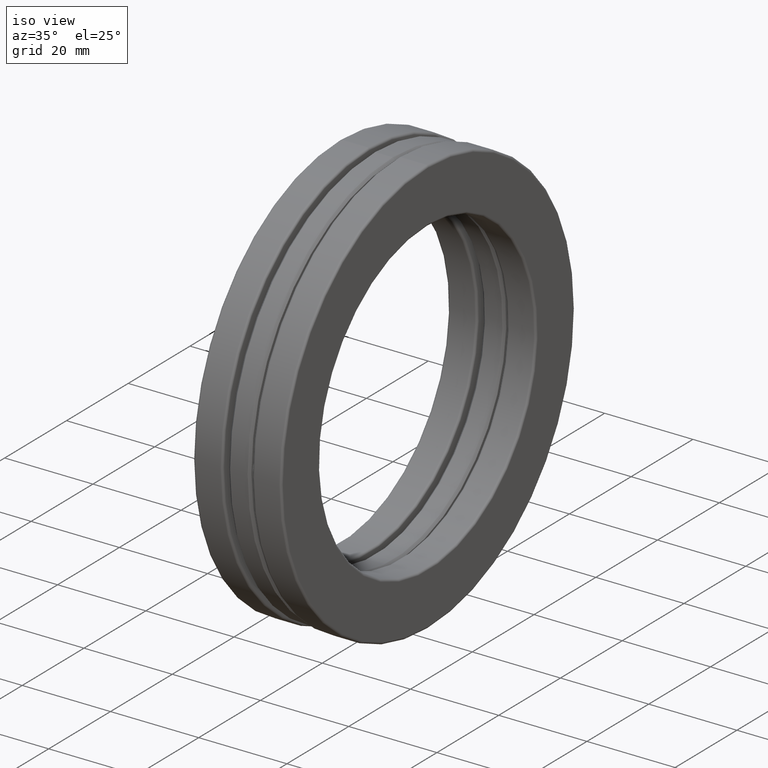
[diagram: clean part render]
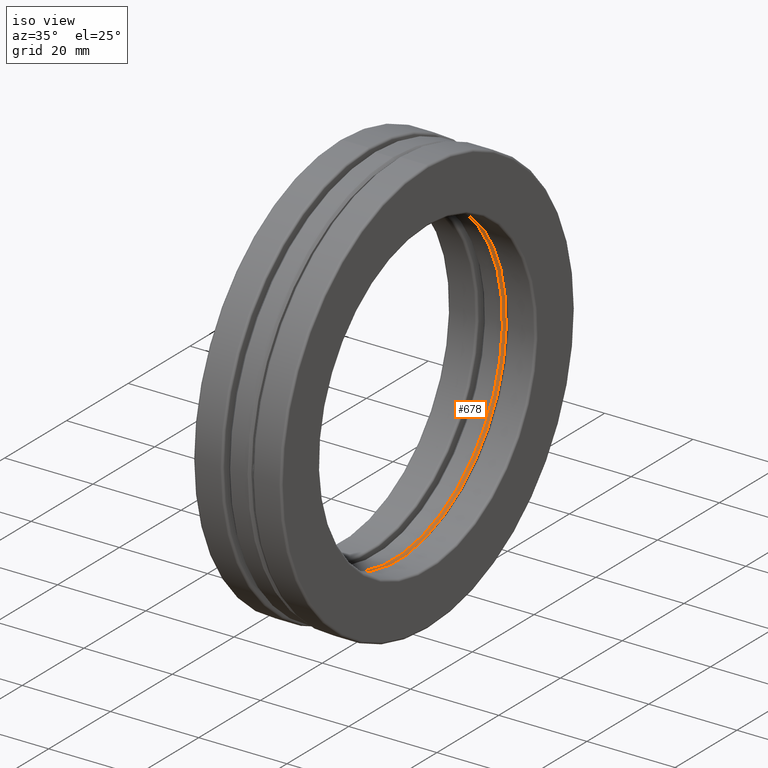
[diagram: same view with one face highlighted and labeled with its STEP entity id]
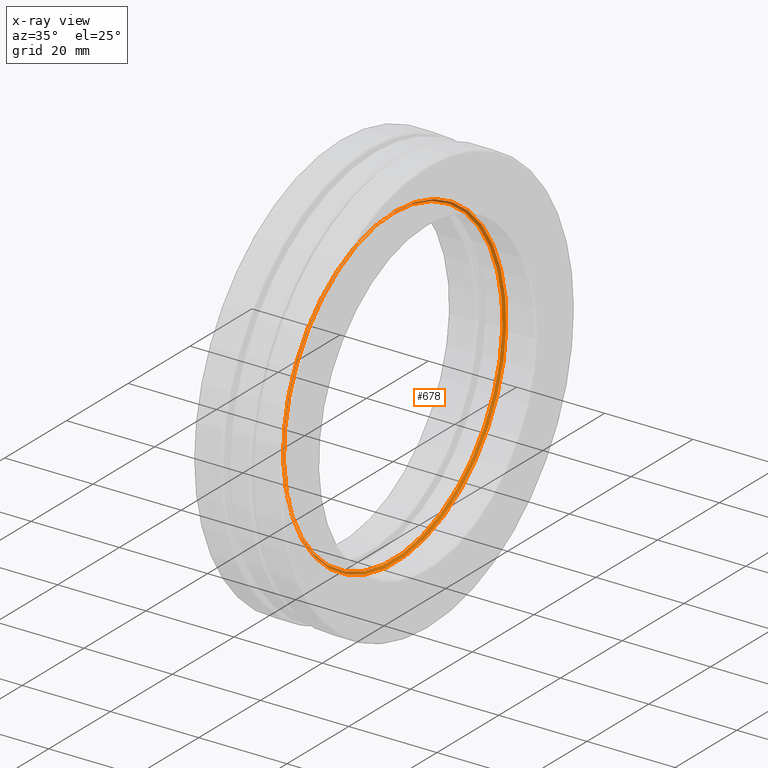
[diagram: x-ray of the same camera — body ghosted, the highlighted face saturated]
A machine part, iso view. The second image highlights one B-rep face of the part: STEP entity #678.
The next image is the same camera in x-ray: the body ghosted, the highlighted face saturated — about 10% of this face is hidden behind the body in this view.
In plain terms, the highlighted conical surface has half-angle 45 deg.
Its self-contained STEP definition (entity closure, byte-faithful):
#45 = FACE_OUTER_BOUND ( 'NONE', #708, .T. ) ;
#64 = FACE_BOUND ( 'NONE', #728, .T. ) ;
#83 = AXIS2_PLACEMENT_3D ( 'NONE', #782, #596, #480 ) ;
#123 = AXIS2_PLACEMENT_3D ( 'NONE', #677, #734, #565 ) ;
#149 = CONICAL_SURFACE ( 'NONE', #123, 1.417999999999999900, 0.7853981633974500600 ) ;
#179 = CIRCLE ( 'NONE', #83, 1.397999999999999900 ) ;
#290 = ORIENTED_EDGE ( 'NONE', *, *, #391, .T. ) ;
#391 = EDGE_CURVE ( 'NONE', #414, #414, #179, .T. ) ;
#393 = CARTESIAN_POINT ( 'NONE',  ( 0.07837500000000002800, 0.0000000000000000000, 1.397999999999999900 ) ) ;
#414 = VERTEX_POINT ( 'NONE', #393 ) ;
#463 = AXIS2_PLACEMENT_3D ( 'NONE', #741, #743, #807 ) ;
#480 = DIRECTION ( 'NONE',  ( 0.0000000000000000000, 0.0000000000000000000, 1.000000000000000000 ) ) ;
#499 = EDGE_CURVE ( 'NONE', #603, #603, #550, .T. ) ;
#550 = CIRCLE ( 'NONE', #463, 1.417999999999999900 ) ;
#565 = DIRECTION ( 'NONE',  ( 0.0000000000000000000, 0.0000000000000000000, -1.000000000000000000 ) ) ;
#595 = CARTESIAN_POINT ( 'NONE',  ( 0.09837500000000001800, 0.0000000000000000000, 1.417999999999999900 ) ) ;
#596 = DIRECTION ( 'NONE',  ( -1.000000000000000000, -0.0000000000000000000, -0.0000000000000000000 ) ) ;
#603 = VERTEX_POINT ( 'NONE', #595 ) ;
#677 = CARTESIAN_POINT ( 'NONE',  ( 0.09837500000000001800, 0.0000000000000000000, 0.0000000000000000000 ) ) ;
#678 = ADVANCED_FACE ( 'NONE', ( #64, #45 ), #149, .F. ) ;
#708 = EDGE_LOOP ( 'NONE', ( #772 ) ) ;
#728 = EDGE_LOOP ( 'NONE', ( #290 ) ) ;
#734 = DIRECTION ( 'NONE',  ( 1.000000000000000000, 0.0000000000000000000, 0.0000000000000000000 ) ) ;
#741 = CARTESIAN_POINT ( 'NONE',  ( 0.09837500000000001800, 0.0000000000000000000, 0.0000000000000000000 ) ) ;
#743 = DIRECTION ( 'NONE',  ( -1.000000000000000000, -0.0000000000000000000, -0.0000000000000000000 ) ) ;
#772 = ORIENTED_EDGE ( 'NONE', *, *, #499, .F. ) ;
#782 = CARTESIAN_POINT ( 'NONE',  ( 0.07837500000000002800, 0.0000000000000000000, 0.0000000000000000000 ) ) ;
#807 = DIRECTION ( 'NONE',  ( 0.0000000000000000000, 0.0000000000000000000, 1.000000000000000000 ) ) ;